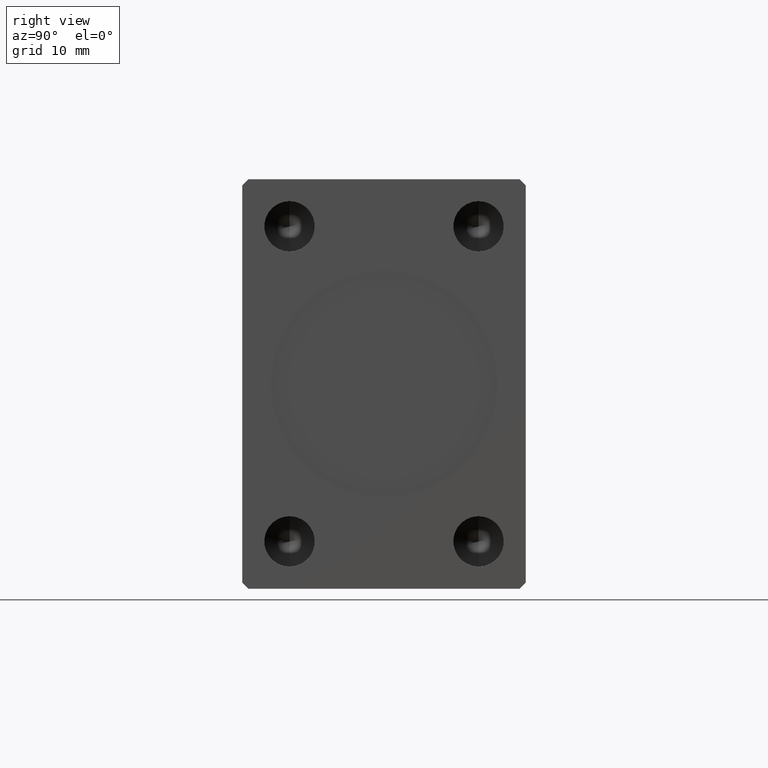
[diagram: clean part render]
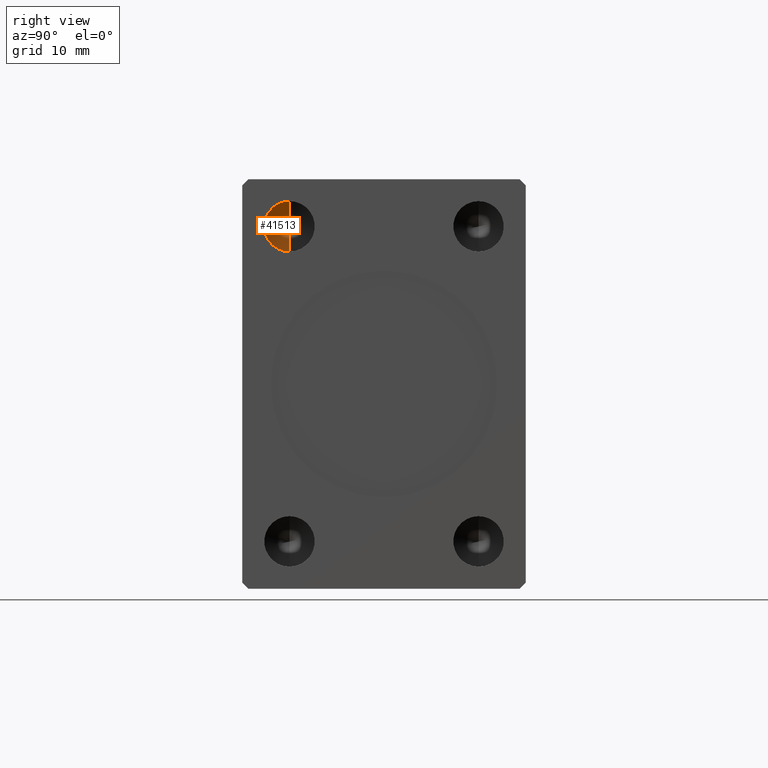
[diagram: same view with one face highlighted and labeled with its STEP entity id]
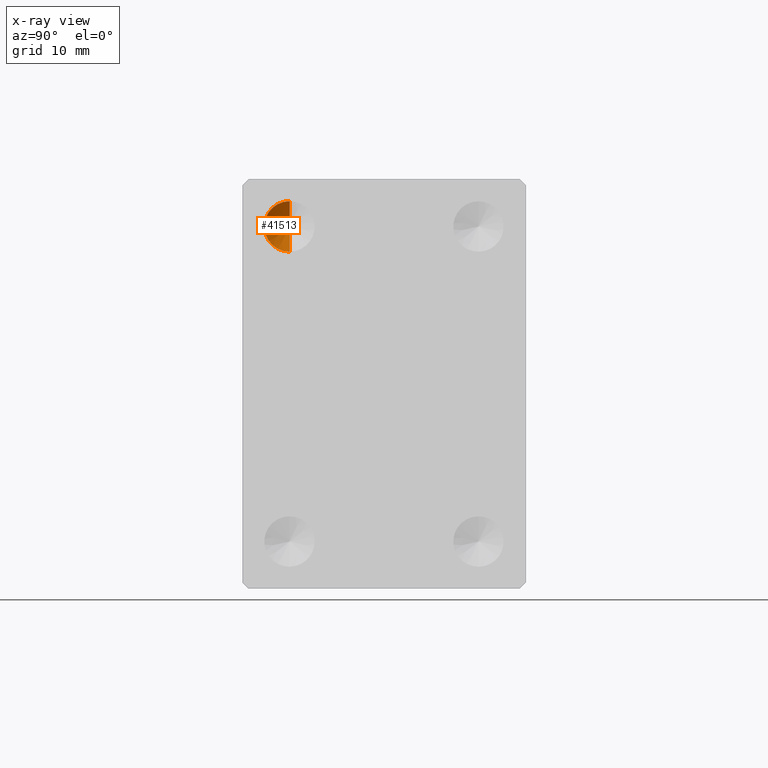
[diagram: x-ray of the same camera — body ghosted, the highlighted face saturated]
A machine part, right view. The second image highlights one B-rep face of the part: STEP entity #41513.
The next image is the same camera in x-ray: the body ghosted, the highlighted face saturated — about 0% of this face is hidden behind the body in this view.
In plain terms, the highlighted conical surface has half-angle 59 deg.
Its self-contained STEP definition (entity closure, byte-faithful):
#1655 = DIRECTION ( 'NONE',  ( 0.5150380749100560429, 1.049727191138617340E-16, 0.8571673007021112234 ) ) ;
#1748 = VERTEX_POINT ( 'NONE', #44102 ) ;
#2165 = EDGE_LOOP ( 'NONE', ( #11371, #2687, #24275 ) ) ;
#2544 = VECTOR ( 'NONE', #1655, 1000.000000000000000 ) ;
#2687 = ORIENTED_EDGE ( 'NONE', *, *, #15232, .T. ) ;
#3983 = EDGE_CURVE ( 'NONE', #23837, #18499, #25898, .T. ) ;
#4054 = CARTESIAN_POINT ( 'NONE',  ( 55.32999999999999829, -14.99999999999999645, 28.99999999999999289 ) ) ;
#4697 = CARTESIAN_POINT ( 'NONE',  ( 55.32999999999999829, -14.99999999999999645, 24.99999999999999645 ) ) ;
#7004 = EDGE_CURVE ( 'NONE', #1748, #18499, #28265, .T. ) ;
#8333 = LINE ( 'NONE', #32206, #2544 ) ;
#11371 = ORIENTED_EDGE ( 'NONE', *, *, #7004, .F. ) ;
#11430 = CARTESIAN_POINT ( 'NONE',  ( 55.32999999999999829, -14.99999999999999645, 24.99999999999999645 ) ) ;
#14748 = DIRECTION ( 'NONE',  ( 0.000000000000000000, 0.000000000000000000, -1.000000000000000000 ) ) ;
#15232 = EDGE_CURVE ( 'NONE', #1748, #23837, #8333, .T. ) ;
#15395 = DIRECTION ( 'NONE',  ( 1.000000000000000000, -0.000000000000000000, -0.000000000000000000 ) ) ;
#17387 = VECTOR ( 'NONE', #35600, 1000.000000000000000 ) ;
#17890 = DIRECTION ( 'NONE',  ( 0.000000000000000000, 0.000000000000000000, -1.000000000000000000 ) ) ;
#18499 = VERTEX_POINT ( 'NONE', #36794 ) ;
#18544 = FACE_OUTER_BOUND ( 'NONE', #2165, .T. ) ;
#21897 = DIRECTION ( 'NONE',  ( 1.000000000000000000, -0.000000000000000000, -0.000000000000000000 ) ) ;
#23837 = VERTEX_POINT ( 'NONE', #4054 ) ;
#24275 = ORIENTED_EDGE ( 'NONE', *, *, #3983, .T. ) ;
#25898 = CIRCLE ( 'NONE', #28727, 3.999999999999996447 ) ;
#28265 = LINE ( 'NONE', #35822, #17387 ) ;
#28727 = AXIS2_PLACEMENT_3D ( 'NONE', #4697, #15395, #14748 ) ;
#32206 = CARTESIAN_POINT ( 'NONE',  ( 55.32999999999999829, -14.99999999999999645, 28.99999999999999289 ) ) ;
#35600 = DIRECTION ( 'NONE',  ( 0.5150380749100560429, 0.000000000000000000, -0.8571673007021112234 ) ) ;
#35822 = CARTESIAN_POINT ( 'NONE',  ( 55.32999999999999829, -14.99999999999999645, 21.00000000000000000 ) ) ;
#36574 = CONICAL_SURFACE ( 'NONE', #42243, 3.999999999999996447, 1.029744258676652313 ) ;
#36794 = CARTESIAN_POINT ( 'NONE',  ( 55.32999999999999829, -14.99999999999999645, 21.00000000000000000 ) ) ;
#41513 = ADVANCED_FACE ( 'NONE', ( #18544 ), #36574, .F. ) ;
#42243 = AXIS2_PLACEMENT_3D ( 'NONE', #11430, #21897, #17890 ) ;
#44102 = CARTESIAN_POINT ( 'NONE',  ( 52.92655752388974832, -15.00000000000000355, 24.99999999999999645 ) ) ;